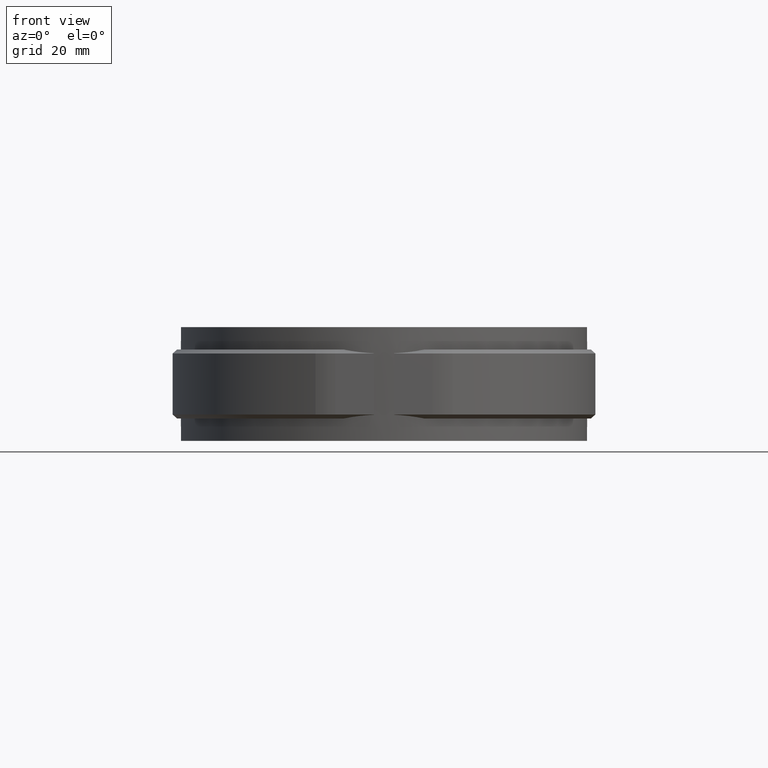
[diagram: clean part render]
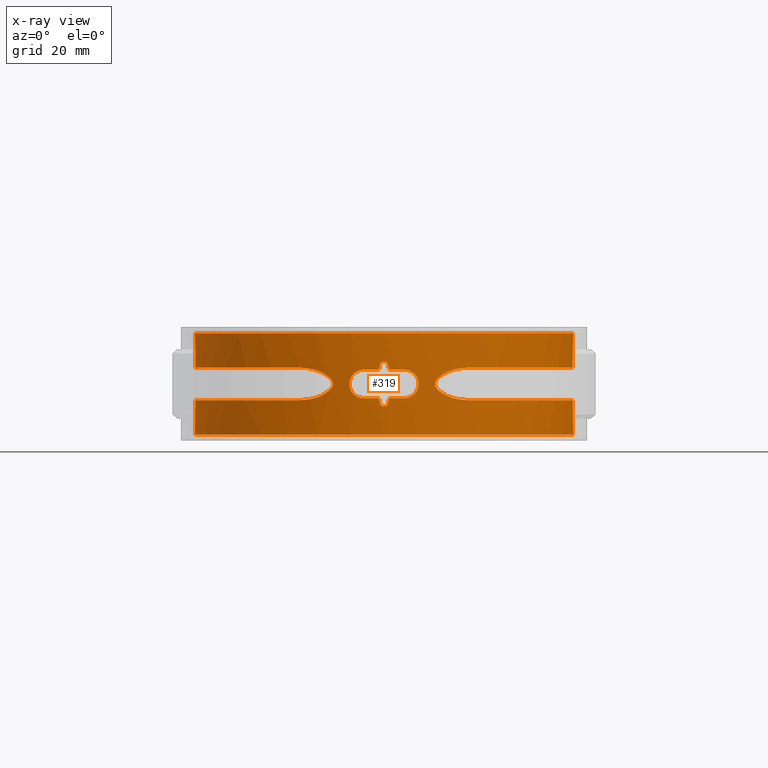
[diagram: x-ray — body ghosted, one internal face saturated and labeled with its STEP entity id]
A machine part, front view, then the same camera in x-ray: the body is ghosted and one INTERNAL B-rep face — a face not visible from any outside direction — is saturated and labeled: STEP entity #319.
In plain terms, the highlighted cylindrical surface (partial cylindrical patch) has radius 46.55 mm, axis along (0, 0, -1).
Its self-contained STEP definition (entity closure, byte-faithful):
#319 = ADVANCED_FACE( '', ( #518, #519 ), #520, .F. );
#518 = FACE_BOUND( '', #932, .T. );
#519 = FACE_OUTER_BOUND( '', #933, .T. );
#520 = CYLINDRICAL_SURFACE( '', #934, 46.5500000000000 );
#932 = EDGE_LOOP( '', ( #1930, #1931, #1932, #1933, #1934, #1935, #1936, #1937, #1938, #1939, #1940, #1941, #1942, #1943, #1944, #1945 ) );
#933 = EDGE_LOOP( '', ( #1946, #1947, #1948, #1949, #1950, #1951, #1952, #1953, #1954, #1955, #1956, #1957, #1958, #1959, #1960, #1961 ) );
#934 = AXIS2_PLACEMENT_3D( '', #1962, #1963, #1964 );
#1930 = ORIENTED_EDGE( '', *, *, #4031, .F. );
#1931 = ORIENTED_EDGE( '', *, *, #4032, .F. );
#1932 = ORIENTED_EDGE( '', *, *, #4033, .F. );
#1933 = ORIENTED_EDGE( '', *, *, #4034, .F. );
#1934 = ORIENTED_EDGE( '', *, *, #4035, .F. );
#1935 = ORIENTED_EDGE( '', *, *, #4036, .F. );
#1936 = ORIENTED_EDGE( '', *, *, #4037, .F. );
#1937 = ORIENTED_EDGE( '', *, *, #4038, .F. );
#1938 = ORIENTED_EDGE( '', *, *, #4039, .F. );
#1939 = ORIENTED_EDGE( '', *, *, #4040, .F. );
#1940 = ORIENTED_EDGE( '', *, *, #4041, .F. );
#1941 = ORIENTED_EDGE( '', *, *, #4042, .F. );
#1942 = ORIENTED_EDGE( '', *, *, #4043, .F. );
#1943 = ORIENTED_EDGE( '', *, *, #4044, .F. );
#1944 = ORIENTED_EDGE( '', *, *, #4028, .F. );
#1945 = ORIENTED_EDGE( '', *, *, #4024, .F. );
#1946 = ORIENTED_EDGE( '', *, *, #4045, .F. );
#1947 = ORIENTED_EDGE( '', *, *, #4046, .F. );
#1948 = ORIENTED_EDGE( '', *, *, #4047, .T. );
#1949 = ORIENTED_EDGE( '', *, *, #4048, .T. );
#1950 = ORIENTED_EDGE( '', *, *, #4049, .T. );
#1951 = ORIENTED_EDGE( '', *, *, #4050, .T. );
#1952 = ORIENTED_EDGE( '', *, *, #4051, .T. );
#1953 = ORIENTED_EDGE( '', *, *, #4052, .T. );
#1954 = ORIENTED_EDGE( '', *, *, #4053, .T. );
#1955 = ORIENTED_EDGE( '', *, *, #4054, .T. );
#1956 = ORIENTED_EDGE( '', *, *, #4055, .F. );
#1957 = ORIENTED_EDGE( '', *, *, #4056, .F. );
#1958 = ORIENTED_EDGE( '', *, *, #4057, .F. );
#1959 = ORIENTED_EDGE( '', *, *, #4058, .F. );
#1960 = ORIENTED_EDGE( '', *, *, #4059, .F. );
#1961 = ORIENTED_EDGE( '', *, *, #4060, .F. );
#1962 = CARTESIAN_POINT( '', ( -3.46944695195361E-015, 0.000000000000000, -12.5000000000000 ) );
#1963 = DIRECTION( '', ( 0.000000000000000, 0.000000000000000, -1.00000000000000 ) );
#1964 = DIRECTION( '', ( -1.00000000000000, 6.16283340149655E-017, 0.000000000000000 ) );
#4024 = EDGE_CURVE( '', #4532, #4533, #4534, .T. );
#4028 = EDGE_CURVE( '', #4533, #4540, #4541, .T. );
#4031 = EDGE_CURVE( '', #4545, #4532, #4546, .T. );
#4032 = EDGE_CURVE( '', #4547, #4545, #4548, .T. );
#4033 = EDGE_CURVE( '', #4549, #4547, #4550, .T. );
#4034 = EDGE_CURVE( '', #4551, #4549, #4552, .T. );
#4035 = EDGE_CURVE( '', #4553, #4551, #4554, .T. );
#4036 = EDGE_CURVE( '', #4555, #4553, #4556, .T. );
#4037 = EDGE_CURVE( '', #4557, #4555, #4558, .T. );
#4038 = EDGE_CURVE( '', #4559, #4557, #4560, .T. );
#4039 = EDGE_CURVE( '', #4561, #4559, #4562, .T. );
#4040 = EDGE_CURVE( '', #4563, #4561, #4564, .T. );
#4041 = EDGE_CURVE( '', #4565, #4563, #4566, .T. );
#4042 = EDGE_CURVE( '', #4567, #4565, #4568, .T. );
#4043 = EDGE_CURVE( '', #4569, #4567, #4570, .T. );
#4044 = EDGE_CURVE( '', #4540, #4569, #4571, .T. );
#4045 = EDGE_CURVE( '', #4572, #4573, #4574, .T. );
#4046 = EDGE_CURVE( '', #4575, #4572, #4576, .T. );
#4047 = EDGE_CURVE( '', #4575, #4577, #4578, .T. );
#4048 = EDGE_CURVE( '', #4577, #4579, #4580, .T. );
#4049 = EDGE_CURVE( '', #4579, #4581, #4582, .T. );
#4050 = EDGE_CURVE( '', #4581, #4583, #4584, .T. );
#4051 = EDGE_CURVE( '', #4583, #4585, #4586, .T. );
#4052 = EDGE_CURVE( '', #4585, #4587, #4588, .T. );
#4053 = EDGE_CURVE( '', #4587, #4589, #4590, .T. );
#4054 = EDGE_CURVE( '', #4589, #4591, #4592, .T. );
#4055 = EDGE_CURVE( '', #4593, #4591, #4594, .T. );
#4056 = EDGE_CURVE( '', #4595, #4593, #4596, .T. );
#4057 = EDGE_CURVE( '', #4597, #4595, #4598, .T. );
#4058 = EDGE_CURVE( '', #4599, #4597, #4600, .T. );
#4059 = EDGE_CURVE( '', #4601, #4599, #4602, .T. );
#4060 = EDGE_CURVE( '', #4573, #4601, #4603, .T. );
#4532 = VERTEX_POINT( '', #5372 );
#4533 = VERTEX_POINT( '', #5373 );
#4534 = ELLIPSE( '', #5374, 212.061219288384, 46.5500000000000 );
#4540 = VERTEX_POINT( '', #5382 );
#4541 = B_SPLINE_CURVE_WITH_KNOTS( '', 3, ( #5383, #5384, #5385, #5386, #5387, #5388 ), .UNSPECIFIED., .F., .F., ( 4, 2, 4 ), ( 0.000000000000000, 0.000335867643567258, 0.000671735287134516 ), .UNSPECIFIED. );
#4545 = VERTEX_POINT( '', #5398 );
#4546 = B_SPLINE_CURVE_WITH_KNOTS( '', 3, ( #5399, #5400, #5401, #5402, #5403, #5404, #5405, #5406, #5407, #5408 ), .UNSPECIFIED., .F., .F., ( 4, 2, 2, 2, 4 ), ( 9.26342742239755E-019, 0.000671567789988738, 0.00134313557997747, 0.00201470336996621, 0.00268627115995495 ), .UNSPECIFIED. );
#4547 = VERTEX_POINT( '', #5409 );
#4548 = ELLIPSE( '', #5410, 212.061327465736, 46.5500000000000 );
#4549 = VERTEX_POINT( '', #5411 );
#4550 = B_SPLINE_CURVE_WITH_KNOTS( '', 3, ( #5412, #5413, #5414, #5415, #5416, #5417 ), .UNSPECIFIED., .F., .F., ( 4, 2, 4 ), ( 5.70418124105125E-018, 0.000335865768424954, 0.000671731536849902 ), .UNSPECIFIED. );
#4551 = VERTEX_POINT( '', #5418 );
#4552 = CIRCLE( '', #5419, 46.5500000000000 );
#4553 = VERTEX_POINT( '', #5420 );
#4554 = B_SPLINE_CURVE_WITH_KNOTS( '', 3, ( #5421, #5422, #5423, #5424, #5425, #5426, #5427, #5428, #5429, #5430, #5431, #5432, #5433, #5434, #5435, #5436, #5437, #5438, #5439, #5440, #5441, #5442, #5443, #5444, #5445, #5446, #5447, #5448, #5449, #5450, #5451, #5452, #5453, #5454 ), .UNSPECIFIED., .F., .F., ( 4, 2, 2, 2, 2, 2, 2, 2, 2, 2, 2, 2, 2, 2, 2, 2, 4 ), ( 8.67361737988403E-019, 0.000687134771177364, 0.00137426954235473, 0.00206140431353209, 0.00274853908470945, 0.00343567385588682, 0.00412280862706418, 0.00480994339824155, 0.00549707816941891, 0.00618421294059628, 0.00687134771177364, 0.00755848248295101, 0.00824561725412837, 0.00893275202530574, 0.00961988679648310, 0.0103070215676605, 0.0109941563388378 ), .UNSPECIFIED. );
#4555 = VERTEX_POINT( '', #5455 );
#4556 = CIRCLE( '', #5456, 46.5500000000000 );
#4557 = VERTEX_POINT( '', #5457 );
#4558 = B_SPLINE_CURVE_WITH_KNOTS( '', 3, ( #5458, #5459, #5460, #5461, #5462, #5463 ), .UNSPECIFIED., .F., .F., ( 4, 2, 4 ), ( 0.000000000000000, 0.000335867643567312, 0.000671735287134625 ), .UNSPECIFIED. );
#4559 = VERTEX_POINT( '', #5464 );
#4560 = ELLIPSE( '', #5465, 212.061219288399, 46.5500000000000 );
#4561 = VERTEX_POINT( '', #5466 );
#4562 = B_SPLINE_CURVE_WITH_KNOTS( '', 3, ( #5467, #5468, #5469, #5470, #5471, #5472, #5473, #5474, #5475, #5476 ), .UNSPECIFIED., .F., .F., ( 4, 2, 2, 2, 4 ), ( 1.08420217248550E-019, 0.000671567789988737, 0.00134313557997747, 0.00201470336996621, 0.00268627115995495 ), .UNSPECIFIED. );
#4563 = VERTEX_POINT( '', #5477 );
#4564 = ELLIPSE( '', #5478, 212.061327465781, 46.5500000000000 );
#4565 = VERTEX_POINT( '', #5479 );
#4566 = B_SPLINE_CURVE_WITH_KNOTS( '', 3, ( #5480, #5481, #5482, #5483, #5484, #5485 ), .UNSPECIFIED., .F., .F., ( 4, 2, 4 ), ( 0.000000000000000, 0.000335865768424969, 0.000671731536849938 ), .UNSPECIFIED. );
#4567 = VERTEX_POINT( '', #5486 );
#4568 = CIRCLE( '', #5487, 46.5500000000000 );
#4569 = VERTEX_POINT( '', #5488 );
#4570 = B_SPLINE_CURVE_WITH_KNOTS( '', 3, ( #5489, #5490, #5491, #5492, #5493, #5494, #5495, #5496, #5497, #5498, #5499, #5500, #5501, #5502, #5503, #5504, #5505, #5506, #5507, #5508, #5509, #5510, #5511, #5512, #5513, #5514, #5515, #5516, #5517, #5518, #5519, #5520, #5521, #5522 ), .UNSPECIFIED., .F., .F., ( 4, 2, 2, 2, 2, 2, 2, 2, 2, 2, 2, 2, 2, 2, 2, 2, 4 ), ( 8.67361737988404E-019, 0.000687134771177361, 0.00137426954235472, 0.00206140431353208, 0.00274853908470944, 0.00343567385588680, 0.00412280862706416, 0.00480994339824152, 0.00549707816941889, 0.00618421294059625, 0.00687134771177361, 0.00755848248295097, 0.00824561725412833, 0.00893275202530569, 0.00961988679648305, 0.0103070215676604, 0.0109941563388378 ), .UNSPECIFIED. );
#4571 = CIRCLE( '', #5523, 46.5500000000000 );
#4572 = VERTEX_POINT( '', #5524 );
#4573 = VERTEX_POINT( '', #5525 );
#4574 = B_SPLINE_CURVE_WITH_KNOTS( '', 3, ( #5526, #5527, #5528, #5529, #5530, #5531, #5532, #5533, #5534, #5535, #5536, #5537, #5538, #5539, #5540, #5541, #5542, #5543, #5544, #5545, #5546, #5547, #5548, #5549, #5550, #5551, #5552, #5553, #5554, #5555, #5556, #5557, #5558, #5559, #5560, #5561, #5562, #5563, #5564, #5565, #5566, #5567, #5568, #5569, #5570, #5571, #5572, #5573, #5574, #5575, #5576, #5577, #5578, #5579, #5580, #5581 ), .UNSPECIFIED., .F., .F., ( 4, 2, 2, 2, 2, 2, 2, 2, 2, 2, 2, 2, 2, 2, 2, 2, 2, 2, 2, 2, 2, 2, 2, 2, 2, 2, 2, 4 ), ( 0.000000000000000, 0.00739241022400143, 0.00924051278000178, 0.0110886153360021, 0.0147848204480028, 0.0221772306720043, 0.0258734357840050, 0.0295696408960057, 0.0369620511200071, 0.0406582562320078, 0.0425063587880081, 0.0443544613440085, 0.0517468715680099, 0.0554430766800105, 0.0591392817920112, 0.0665316920160126, 0.0702278971280133, 0.0720759996840136, 0.0739241022400140, 0.0813165124640153, 0.0887089226880167, 0.0924051278000174, 0.0961013329120181, 0.103493743136019, 0.105341845692020, 0.107189948248020, 0.110886153360021, 0.118278563584022 ), .UNSPECIFIED. );
#4575 = VERTEX_POINT( '', #5582 );
#4576 = LINE( '', #5583, #5584 );
#4577 = VERTEX_POINT( '', #5585 );
#4578 = CIRCLE( '', #5586, 46.5500000000000 );
#4579 = VERTEX_POINT( '', #5587 );
#4580 = LINE( '', #5588, #5589 );
#4581 = VERTEX_POINT( '', #5590 );
#4582 = B_SPLINE_CURVE_WITH_KNOTS( '', 3, ( #5591, #5592, #5593, #5594, #5595, #5596, #5597, #5598, #5599, #5600, #5601, #5602, #5603, #5604, #5605, #5606, #5607, #5608, #5609, #5610, #5611, #5612, #5613, #5614, #5615, #5616, #5617, #5618, #5619, #5620, #5621, #5622, #5623, #5624, #5625, #5626, #5627, #5628, #5629, #5630, #5631, #5632, #5633, #5634, #5635, #5636, #5637, #5638, #5639, #5640, #5641, #5642, #5643, #5644 ), .UNSPECIFIED., .F., .F., ( 4, 2, 2, 2, 2, 2, 2, 2, 2, 2, 2, 2, 2, 2, 2, 2, 2, 2, 2, 2, 2, 2, 2, 2, 2, 2, 4 ), ( 0.00461311502875989, 0.00831044911400741, 0.0120077831992549, 0.0194024513697500, 0.0230997854549975, 0.0249484524976212, 0.0267971195402450, 0.0341917877107400, 0.0415864558812350, 0.0489811240517300, 0.0563757922222249, 0.0582244592648487, 0.0600731263074724, 0.0637704603927199, 0.0711651285632149, 0.0748624626484624, 0.0785597967337099, 0.0859544649042049, 0.0878031319468287, 0.0896517989894524, 0.0933491330746999, 0.100743801245195, 0.104441135330442, 0.108138469415690, 0.115533137586185, 0.119230471671432, 0.122927805756680 ), .UNSPECIFIED. );
#4583 = VERTEX_POINT( '', #5645 );
#4584 = B_SPLINE_CURVE_WITH_KNOTS( '', 3, ( #5646, #5647, #5648, #5649, #5650, #5651, #5652, #5653, #5654, #5655 ), .UNSPECIFIED., .F., .F., ( 4, 2, 2, 2, 4 ), ( 0.000000000000000, 0.00149632237868849, 0.00299264475737698, 0.00448896713606547, 0.00598528951475396 ), .UNSPECIFIED. );
#4585 = VERTEX_POINT( '', #5656 );
#4586 = B_SPLINE_CURVE_WITH_KNOTS( '', 3, ( #5657, #5658, #5659, #5660, #5661, #5662, #5663, #5664, #5665, #5666, #5667, #5668, #5669, #5670, #5671, #5672, #5673, #5674, #5675, #5676, #5677, #5678, #5679, #5680, #5681, #5682, #5683, #5684, #5685, #5686 ), .UNSPECIFIED., .F., .F., ( 4, 2, 2, 2, 2, 2, 2, 2, 2, 2, 2, 2, 2, 2, 4 ), ( 0.000000000000000, 0.00112011935832342, 0.00224023871664684, 0.00280029839580855, 0.00336035807497026, 0.00392041775413197, 0.00420044759371283, 0.00448047743329368, 0.00476050727287454, 0.00504053711245539, 0.00560059679161710, 0.00616065647077881, 0.00672071614994052, 0.00784083550826393, 0.00896095486658735 ), .UNSPECIFIED. );
#4587 = VERTEX_POINT( '', #5687 );
#4588 = B_SPLINE_CURVE_WITH_KNOTS( '', 3, ( #5688, #5689, #5690, #5691, #5692, #5693, #5694, #5695, #5696, #5697 ), .UNSPECIFIED., .F., .F., ( 4, 2, 2, 2, 4 ), ( 0.000000000000000, 0.00149513425753580, 0.00299026851507159, 0.00448540277260739, 0.00598053703014319 ), .UNSPECIFIED. );
#4589 = VERTEX_POINT( '', #5698 );
#4590 = B_SPLINE_CURVE_WITH_KNOTS( '', 3, ( #5699, #5700, #5701, #5702, #5703, #5704, #5705, #5706, #5707, #5708, #5709, #5710, #5711, #5712, #5713, #5714, #5715, #5716, #5717, #5718, #5719, #5720, #5721, #5722, #5723, #5724, #5725, #5726, #5727, #5728, #5729, #5730, #5731, #5732, #5733, #5734, #5735, #5736, #5737, #5738, #5739, #5740, #5741, #5742, #5743, #5744, #5745, #5746, #5747, #5748, #5749, #5750, #5751, #5752, #5753, #5754 ), .UNSPECIFIED., .F., .F., ( 4, 2, 2, 2, 2, 2, 2, 2, 2, 2, 2, 2, 2, 2, 2, 2, 2, 2, 2, 2, 2, 2, 2, 2, 2, 2, 2, 4 ), ( 0.000000000000000, 0.00739525285955345, 0.00924406607444182, 0.0110928792893302, 0.0147905057191069, 0.0221857585786603, 0.0258833850084370, 0.0295810114382137, 0.0369762642977672, 0.0406738907275439, 0.0425227039424322, 0.0443715171573206, 0.0517667700168740, 0.0554643964466508, 0.0591620228764275, 0.0665572757359809, 0.0702549021657576, 0.0721037153806460, 0.0739525285955343, 0.0813477814550877, 0.0887430343146411, 0.0924406607444178, 0.0961382871741946, 0.103533540033748, 0.105382353248636, 0.107231166463525, 0.110928792893301, 0.118324045752855 ), .UNSPECIFIED. );
#4591 = VERTEX_POINT( '', #5755 );
#4592 = LINE( '', #5756, #5757 );
#4593 = VERTEX_POINT( '', #5758 );
#4594 = CIRCLE( '', #5759, 46.5500000000000 );
#4595 = VERTEX_POINT( '', #5760 );
#4596 = LINE( '', #5761, #5762 );
#4597 = VERTEX_POINT( '', #5763 );
#4598 = B_SPLINE_CURVE_WITH_KNOTS( '', 3, ( #5764, #5765, #5766, #5767, #5768, #5769, #5770, #5771, #5772, #5773, #5774, #5775, #5776, #5777, #5778, #5779, #5780, #5781, #5782, #5783, #5784, #5785, #5786, #5787, #5788, #5789, #5790, #5791, #5792, #5793, #5794, #5795, #5796, #5797, #5798, #5799, #5800, #5801, #5802, #5803, #5804, #5805, #5806, #5807, #5808, #5809, #5810, #5811, #5812, #5813, #5814, #5815, #5816, #5817, #5818, #5819 ), .UNSPECIFIED., .F., .F., ( 4, 2, 2, 2, 2, 2, 2, 2, 2, 2, 2, 2, 2, 2, 2, 2, 2, 2, 2, 2, 2, 2, 2, 2, 2, 2, 2, 4 ), ( 0.000000000000000, 0.00739525285955343, 0.00924406607444180, 0.0110928792893302, 0.0147905057191069, 0.0221857585786603, 0.0258833850084371, 0.0295810114382138, 0.0369762642977672, 0.0406738907275439, 0.0425227039424323, 0.0443715171573206, 0.0517667700168741, 0.0554643964466508, 0.0591620228764275, 0.0665572757359810, 0.0702549021657577, 0.0721037153806461, 0.0739525285955344, 0.0813477814550878, 0.0887430343146412, 0.0924406607444179, 0.0961382871741946, 0.103533540033748, 0.105382353248636, 0.107231166463525, 0.110928792893301, 0.118324045752855 ), .UNSPECIFIED. );
#4599 = VERTEX_POINT( '', #5820 );
#4600 = B_SPLINE_CURVE_WITH_KNOTS( '', 3, ( #5821, #5822, #5823, #5824, #5825, #5826, #5827, #5828, #5829, #5830 ), .UNSPECIFIED., .F., .F., ( 4, 2, 2, 2, 4 ), ( 0.000000000000000, 0.00149513425753580, 0.00299026851507159, 0.00448540277260739, 0.00598053703014319 ), .UNSPECIFIED. );
#4601 = VERTEX_POINT( '', #5831 );
#4602 = B_SPLINE_CURVE_WITH_KNOTS( '', 3, ( #5832, #5833, #5834, #5835, #5836, #5837, #5838, #5839, #5840, #5841, #5842, #5843, #5844, #5845, #5846, #5847, #5848, #5849, #5850, #5851, #5852, #5853, #5854, #5855, #5856, #5857, #5858, #5859, #5860, #5861 ), .UNSPECIFIED., .F., .F., ( 4, 2, 2, 2, 2, 2, 2, 2, 2, 2, 2, 2, 2, 2, 4 ), ( 0.000000000000000, 0.00112011935832342, 0.00224023871664684, 0.00280029839580855, 0.00336035807497026, 0.00392041775413197, 0.00420044759371283, 0.00448047743329368, 0.00476050727287454, 0.00504053711245539, 0.00560059679161710, 0.00616065647077881, 0.00672071614994052, 0.00784083550826393, 0.00896095486658735 ), .UNSPECIFIED. );
#4603 = B_SPLINE_CURVE_WITH_KNOTS( '', 3, ( #5862, #5863, #5864, #5865, #5866, #5867, #5868, #5869, #5870, #5871 ), .UNSPECIFIED., .F., .F., ( 4, 2, 2, 2, 4 ), ( 0.000000000000000, 0.00149632237868849, 0.00299264475737698, 0.00448896713606547, 0.00598528951475396 ), .UNSPECIFIED. );
#5372 = CARTESIAN_POINT( '', ( -0.975609757981835, -46.5397753067216, -4.71951218674743 ) );
#5373 = CARTESIAN_POINT( '', ( -1.16219500000001, -46.5354897124976, -3.89024399999999 ) );
#5374 = AXIS2_PLACEMENT_3D( '', #8255, #8256, #8257 );
#5382 = CARTESIAN_POINT( '', ( -1.64999999999996, -46.5207480593337, -3.49999999999999 ) );
#5383 = CARTESIAN_POINT( '', ( -1.16219500000001, -46.5354897124976, -3.89024399999999 ) );
#5384 = CARTESIAN_POINT( '', ( -1.18712420397179, -46.5348671210865, -3.77944753568268 ) );
#5385 = CARTESIAN_POINT( '', ( -1.24903650881785, -46.5333243537973, -3.68044081312041 ) );
#5386 = CARTESIAN_POINT( '', ( -1.42636241158842, -46.5282264640172, -3.53861514028637 ) );
#5387 = CARTESIAN_POINT( '', ( -1.53650490240857, -46.5247735085975, -3.49999999951289 ) );
#5388 = CARTESIAN_POINT( '', ( -1.64999999999996, -46.5207480593337, -3.50000000000000 ) );
#5398 = CARTESIAN_POINT( '', ( 0.975609999999998, -46.5397753016481, -4.71951200000000 ) );
#5399 = CARTESIAN_POINT( '', ( 0.975609999999998, -46.5397753016481, -4.71951200000000 ) );
#5400 = CARTESIAN_POINT( '', ( 0.925763811660467, -46.5408202237495, -4.94105072272846 ) );
#5401 = CARTESIAN_POINT( '', ( 0.802006513264279, -46.5434284211128, -5.13901837189036 ) );
#5402 = CARTESIAN_POINT( '', ( 0.447391365684778, -46.5481877692836, -5.42271325637587 ) );
#5403 = CARTESIAN_POINT( '', ( 0.227079142415347, -46.5500000006644, -5.50000005706915 ) );
#5404 = CARTESIAN_POINT( '', ( -0.227079414810581, -46.5499999993356, -5.49999994979800 ) );
#5405 = CARTESIAN_POINT( '', ( -0.447400186077757, -46.5481876660238, -5.42270759232652 ) );
#5406 = CARTESIAN_POINT( '', ( -0.802005630293599, -46.5434284178428, -5.13901736590035 ) );
#5407 = CARTESIAN_POINT( '', ( -0.925763527024686, -46.5408202294570, -4.94105090087471 ) );
#5408 = CARTESIAN_POINT( '', ( -0.975609757981835, -46.5397753067216, -4.71951218674743 ) );
#5409 = CARTESIAN_POINT( '', ( 1.16219512100914, -46.5354897094755, -3.89024390662629 ) );
#5410 = AXIS2_PLACEMENT_3D( '', #8264, #8265, #8266 );
#5411 = CARTESIAN_POINT( '', ( 1.65000000000002, -46.5207480593337, -3.49999999999999 ) );
#5412 = CARTESIAN_POINT( '', ( 1.65000000000002, -46.5207480593337, -3.50000000000002 ) );
#5413 = CARTESIAN_POINT( '', ( 1.53650492986797, -46.5247735076235, -3.50000000000002 ) );
#5414 = CARTESIAN_POINT( '', ( 1.42636231025923, -46.5282264652819, -3.53861554993225 ) );
#5415 = CARTESIAN_POINT( '', ( 1.24903833890374, -46.5333243028331, -3.68043909286674 ) );
#5416 = CARTESIAN_POINT( '', ( 1.18712431856231, -46.5348671181598, -3.77944746861569 ) );
#5417 = CARTESIAN_POINT( '', ( 1.16219512100914, -46.5354897094755, -3.89024390662629 ) );
#5418 = CARTESIAN_POINT( '', ( 5.00000000000004, -46.2806925185870, -3.49999999999999 ) );
#5419 = AXIS2_PLACEMENT_3D( '', #8267, #8268, #8269 );
#5420 = CARTESIAN_POINT( '', ( 5.00000000000004, -46.2806925185870, 3.50000000000000 ) );
#5421 = CARTESIAN_POINT( '', ( 5.00000000000005, -46.2806925185870, 3.50000000000000 ) );
#5422 = CARTESIAN_POINT( '', ( 5.23101424725128, -46.2557345680163, 3.50000000000000 ) );
#5423 = CARTESIAN_POINT( '', ( 5.45798688627984, -46.2294648070248, 3.47735417320556 ) );
#5424 = CARTESIAN_POINT( '', ( 5.90423554468161, -46.1745930120415, 3.38882016543352 ) );
#5425 = CARTESIAN_POINT( '', ( 6.12575625310973, -46.1456732050923, 3.32189913692397 ) );
#5426 = CARTESIAN_POINT( '', ( 6.54860903964377, -46.0875662719305, 3.14708612205728 ) );
#5427 = CARTESIAN_POINT( '', ( 6.74913194916253, -46.0585339927889, 3.04014833053229 ) );
#5428 = CARTESIAN_POINT( '', ( 7.12869562067263, -46.0013155722735, 2.78758307530890 ) );
#5429 = CARTESIAN_POINT( '', ( 7.30868713323898, -45.9729526051980, 2.64044435126905 ) );
#5430 = CARTESIAN_POINT( '', ( 7.63173027795680, -45.9204308757645, 2.31861562045489 ) );
#5431 = CARTESIAN_POINT( '', ( 7.77679320521374, -45.8959793147898, 2.14295842760768 ) );
#5432 = CARTESIAN_POINT( '', ( 8.03324278500658, -45.8517877533407, 1.76133175017698 ) );
#5433 = CARTESIAN_POINT( '', ( 8.14289242043931, -45.8323441894986, 1.55705653946266 ) );
#5434 = CARTESIAN_POINT( '', ( 8.31863855610540, -45.8007720835402, 1.13526911675996 ) );
#5435 = CARTESIAN_POINT( '', ( 8.38623987158776, -45.7883787014959, 0.914916126865259 ) );
#5436 = CARTESIAN_POINT( '', ( 8.47729974651430, -45.7716072724474, 0.460519771584722 ) );
#5437 = CARTESIAN_POINT( '', ( 8.49980279502249, -45.7674103755657, 0.232266715548748 ) );
#5438 = CARTESIAN_POINT( '', ( 8.50019464909964, -45.7673375997242, -0.226284885958610 ) );
#5439 = CARTESIAN_POINT( '', ( 8.47736465282512, -45.7715947026079, -0.459162923809957 ) );
#5440 = CARTESIAN_POINT( '', ( 8.38737811139794, -45.7881696674284, -0.910255485971624 ) );
#5441 = CARTESIAN_POINT( '', ( 8.32081330275416, -45.8003775084187, -1.12917817948343 ) );
#5442 = CARTESIAN_POINT( '', ( 8.14459446912271, -45.8320422288435, -1.55382430716390 ) );
#5443 = CARTESIAN_POINT( '', ( 8.03450063987222, -45.8515640224239, -1.75894670944727 ) );
#5444 = CARTESIAN_POINT( '', ( 7.78038144641327, -45.8953678314364, -2.13812223048664 ) );
#5445 = CARTESIAN_POINT( '', ( 7.63547307573153, -45.9198155370584, -2.31464134562974 ) );
#5446 = CARTESIAN_POINT( '', ( 7.30865900001749, -45.9729639208650, -2.64071515189402 ) );
#5447 = CARTESIAN_POINT( '', ( 7.13210339171439, -46.0007847819863, -2.78493446076323 ) );
#5448 = CARTESIAN_POINT( '', ( 6.75376402296731, -46.0578524344199, -3.03743914761301 ) );
#5449 = CARTESIAN_POINT( '', ( 6.54961913161978, -46.0874221809350, -3.14658187784906 ) );
#5450 = CARTESIAN_POINT( '', ( 6.12700537486969, -46.1455068147413, -3.32146892987199 ) );
#5451 = CARTESIAN_POINT( '', ( 5.90948262079245, -46.1739247487791, -3.38746115223729 ) );
#5452 = CARTESIAN_POINT( '', ( 5.46202983718599, -46.2289902724367, -3.47686354707661 ) );
#5453 = CARTESIAN_POINT( '', ( 5.23101208102020, -46.2557348020482, -3.50000000000002 ) );
#5454 = CARTESIAN_POINT( '', ( 5.00000000000005, -46.2806925185870, -3.50000000000002 ) );
#5455 = CARTESIAN_POINT( '', ( 1.65000000000005, -46.5207480593337, 3.50000000000000 ) );
#5456 = AXIS2_PLACEMENT_3D( '', #8270, #8271, #8272 );
#5457 = CARTESIAN_POINT( '', ( 1.16219499999999, -46.5354897124976, 3.89024400000000 ) );
#5458 = CARTESIAN_POINT( '', ( 1.16219499999999, -46.5354897124976, 3.89024400000000 ) );
#5459 = CARTESIAN_POINT( '', ( 1.18712420397179, -46.5348671210865, 3.77944753568268 ) );
#5460 = CARTESIAN_POINT( '', ( 1.24903650881786, -46.5333243537973, 3.68044081312039 ) );
#5461 = CARTESIAN_POINT( '', ( 1.42636241158847, -46.5282264640172, 3.53861514028634 ) );
#5462 = CARTESIAN_POINT( '', ( 1.53650490240864, -46.5247735085975, 3.49999999951287 ) );
#5463 = CARTESIAN_POINT( '', ( 1.65000000000005, -46.5207480593337, 3.49999999999999 ) );
#5464 = CARTESIAN_POINT( '', ( 0.975609757981830, -46.5397753067216, 4.71951218674745 ) );
#5465 = AXIS2_PLACEMENT_3D( '', #8273, #8274, #8275 );
#5466 = CARTESIAN_POINT( '', ( -0.975610000000002, -46.5397753016481, 4.71951200000000 ) );
#5467 = CARTESIAN_POINT( '', ( -0.975610000000002, -46.5397753016481, 4.71951200000000 ) );
#5468 = CARTESIAN_POINT( '', ( -0.925763811660473, -46.5408202237495, 4.94105072272847 ) );
#5469 = CARTESIAN_POINT( '', ( -0.802006513264287, -46.5434284211128, 5.13901837189037 ) );
#5470 = CARTESIAN_POINT( '', ( -0.447391365684787, -46.5481877692836, 5.42271325637588 ) );
#5471 = CARTESIAN_POINT( '', ( -0.227079142415356, -46.5500000006644, 5.50000005706916 ) );
#5472 = CARTESIAN_POINT( '', ( 0.227079414810572, -46.5499999993356, 5.49999994979801 ) );
#5473 = CARTESIAN_POINT( '', ( 0.447400186077750, -46.5481876660238, 5.42270759232653 ) );
#5474 = CARTESIAN_POINT( '', ( 0.802005630293593, -46.5434284178428, 5.13901736590036 ) );
#5475 = CARTESIAN_POINT( '', ( 0.925763527024679, -46.5408202294570, 4.94105090087473 ) );
#5476 = CARTESIAN_POINT( '', ( 0.975609757981829, -46.5397753067216, 4.71951218674745 ) );
#5477 = CARTESIAN_POINT( '', ( -1.16219512100910, -46.5354897094755, 3.89024390662629 ) );
#5478 = AXIS2_PLACEMENT_3D( '', #8276, #8277, #8278 );
#5479 = CARTESIAN_POINT( '', ( -1.65000000000002, -46.5207480593337, 3.50000000000000 ) );
#5480 = CARTESIAN_POINT( '', ( -1.65000000000002, -46.5207480593337, 3.50000000000000 ) );
#5481 = CARTESIAN_POINT( '', ( -1.53650492986795, -46.5247735076235, 3.50000000000000 ) );
#5482 = CARTESIAN_POINT( '', ( -1.42636231025921, -46.5282264652819, 3.53861554993223 ) );
#5483 = CARTESIAN_POINT( '', ( -1.24903833890371, -46.5333243028331, 3.68043909286673 ) );
#5484 = CARTESIAN_POINT( '', ( -1.18712431856228, -46.5348671181598, 3.77944746861568 ) );
#5485 = CARTESIAN_POINT( '', ( -1.16219512100910, -46.5354897094755, 3.89024390662629 ) );
#5486 = CARTESIAN_POINT( '', ( -4.99999999999995, -46.2806925185870, 3.50000000000000 ) );
#5487 = AXIS2_PLACEMENT_3D( '', #8279, #8280, #8281 );
#5488 = CARTESIAN_POINT( '', ( -4.99999999999995, -46.2806925185870, -3.49999999999999 ) );
#5489 = CARTESIAN_POINT( '', ( -4.99999999999995, -46.2806925185870, -3.49999999999999 ) );
#5490 = CARTESIAN_POINT( '', ( -5.23101424725119, -46.2557345680164, -3.49999999999999 ) );
#5491 = CARTESIAN_POINT( '', ( -5.45798688627975, -46.2294648070249, -3.47735417320555 ) );
#5492 = CARTESIAN_POINT( '', ( -5.90423554468151, -46.1745930120415, -3.38882016543350 ) );
#5493 = CARTESIAN_POINT( '', ( -6.12575625310963, -46.1456732050923, -3.32189913692395 ) );
#5494 = CARTESIAN_POINT( '', ( -6.54860903964367, -46.0875662719305, -3.14708612205726 ) );
#5495 = CARTESIAN_POINT( '', ( -6.74913194916243, -46.0585339927889, -3.04014833053228 ) );
#5496 = CARTESIAN_POINT( '', ( -7.12869562067252, -46.0013155722735, -2.78758307530889 ) );
#5497 = CARTESIAN_POINT( '', ( -7.30868713323888, -45.9729526051980, -2.64044435126904 ) );
#5498 = CARTESIAN_POINT( '', ( -7.63173027795669, -45.9204308757646, -2.31861562045488 ) );
#5499 = CARTESIAN_POINT( '', ( -7.77679320521363, -45.8959793147898, -2.14295842760768 ) );
#5500 = CARTESIAN_POINT( '', ( -8.03324278500647, -45.8517877533408, -1.76133175017698 ) );
#5501 = CARTESIAN_POINT( '', ( -8.14289242043920, -45.8323441894986, -1.55705653946265 ) );
#5502 = CARTESIAN_POINT( '', ( -8.31863855610529, -45.8007720835402, -1.13526911675996 ) );
#5503 = CARTESIAN_POINT( '', ( -8.38623987158765, -45.7883787014959, -0.914916126865256 ) );
#5504 = CARTESIAN_POINT( '', ( -8.47729974651419, -45.7716072724474, -0.460519771584723 ) );
#5505 = CARTESIAN_POINT( '', ( -8.49980279502238, -45.7674103755657, -0.232266715548750 ) );
#5506 = CARTESIAN_POINT( '', ( -8.50019464909952, -45.7673375997242, 0.226284885958605 ) );
#5507 = CARTESIAN_POINT( '', ( -8.47736465282501, -45.7715947026079, 0.459162923809953 ) );
#5508 = CARTESIAN_POINT( '', ( -8.38737811139782, -45.7881696674285, 0.910255485971617 ) );
#5509 = CARTESIAN_POINT( '', ( -8.32081330275405, -45.8003775084188, 1.12917817948342 ) );
#5510 = CARTESIAN_POINT( '', ( -8.14459446912259, -45.8320422288435, 1.55382430716389 ) );
#5511 = CARTESIAN_POINT( '', ( -8.03450063987211, -45.8515640224239, 1.75894670944726 ) );
#5512 = CARTESIAN_POINT( '', ( -7.78038144641316, -45.8953678314364, 2.13812223048662 ) );
#5513 = CARTESIAN_POINT( '', ( -7.63547307573142, -45.9198155370585, 2.31464134562972 ) );
#5514 = CARTESIAN_POINT( '', ( -7.30865900001738, -45.9729639208650, 2.64071515189400 ) );
#5515 = CARTESIAN_POINT( '', ( -7.13210339171428, -46.0007847819863, 2.78493446076321 ) );
#5516 = CARTESIAN_POINT( '', ( -6.75376402296721, -46.0578524344199, 3.03743914761299 ) );
#5517 = CARTESIAN_POINT( '', ( -6.54961913161968, -46.0874221809350, 3.14658187784904 ) );
#5518 = CARTESIAN_POINT( '', ( -6.12700537486959, -46.1455068147413, 3.32146892987196 ) );
#5519 = CARTESIAN_POINT( '', ( -5.90948262079235, -46.1739247487791, 3.38746115223727 ) );
#5520 = CARTESIAN_POINT( '', ( -5.46202983718589, -46.2289902724368, 3.47686354707659 ) );
#5521 = CARTESIAN_POINT( '', ( -5.23101208102011, -46.2557348020482, 3.49999999999999 ) );
#5522 = CARTESIAN_POINT( '', ( -4.99999999999995, -46.2806925185870, 3.49999999999999 ) );
#5523 = AXIS2_PLACEMENT_3D( '', #8282, #8283, #8284 );
#5524 = CARTESIAN_POINT( '', ( 6.57618567103939, 46.0831453138782, -3.99547789453365 ) );
#5525 = CARTESIAN_POINT( '', ( 20.9286488140006, -41.5799738154699, -3.99749411284496 ) );
#5526 = CARTESIAN_POINT( '', ( 6.57618567103939, 46.0831453138782, -3.99547789453365 ) );
#5527 = CARTESIAN_POINT( '', ( 9.03007763106052, 45.7329684968259, -3.99397550587318 ) );
#5528 = CARTESIAN_POINT( '', ( 11.4349335122546, 45.1910634176170, -3.99297811472633 ) );
#5529 = CARTESIAN_POINT( '', ( 14.3805562555051, 44.2773369271465, -3.99377441429058 ) );
#5530 = CARTESIAN_POINT( '', ( 14.9666404066915, 44.0827038345628, -3.99401518021754 ) );
#5531 = CARTESIAN_POINT( '', ( 16.1326765619879, 43.6694612901885, -3.99461234227234 ) );
#5532 = CARTESIAN_POINT( '', ( 16.7132801183845, 43.4505485279413, -3.99496925358459 ) );
#5533 = CARTESIAN_POINT( '', ( 18.4335184960048, 42.7625244184172, -3.99608325858104 ) );
#5534 = CARTESIAN_POINT( '', ( 19.5553595893905, 42.2609760911114, -3.99689817422308 ) );
#5535 = CARTESIAN_POINT( '', ( 22.8478307663134, 40.6309965992631, -3.99805808182011 ) );
#5536 = CARTESIAN_POINT( '', ( 24.9458520686048, 39.3779915789106, -3.99627556149785 ) );
#5537 = CARTESIAN_POINT( '', ( 27.9466987309228, 37.2476756871808, -3.99467976945150 ) );
#5538 = CARTESIAN_POINT( '', ( 28.9226241460492, 36.4954815554455, -3.99431753541407 ) );
#5539 = CARTESIAN_POINT( '', ( 30.8235126338302, 34.9048625605316, -3.99422994355109 ) );
#5540 = CARTESIAN_POINT( '', ( 31.7358122132083, 34.0770500746909, -3.99450535032411 ) );
#5541 = CARTESIAN_POINT( '', ( 34.3617511578624, 31.4990639839533, -3.99594849957519 ) );
#5542 = CARTESIAN_POINT( '', ( 35.9650968863893, 29.6549093891415, -3.99787450118167 ) );
#5543 = CARTESIAN_POINT( '', ( 38.1502477906098, 26.7013282393679, -3.99718837088351 ) );
#5544 = CARTESIAN_POINT( '', ( 38.8418193240743, 25.6854336089158, -3.99648971199081 ) );
#5545 = CARTESIAN_POINT( '', ( 39.8225112222334, 24.1133071555024, -3.99547269593865 ) );
#5546 = CARTESIAN_POINT( '', ( 40.1404795432186, 23.5802048498777, -3.99513541023542 ) );
#5547 = CARTESIAN_POINT( '', ( 40.7521181978722, 22.5066439325902, -3.99455364906564 ) );
#5548 = CARTESIAN_POINT( '', ( 41.0463395848322, 21.9653871597278, -3.99430857407783 ) );
#5549 = CARTESIAN_POINT( '', ( 42.4603507377291, 19.2370667584880, -3.99343648326422 ) );
#5550 = CARTESIAN_POINT( '', ( 43.4099147327429, 16.9843032867978, -3.99416618747377 ) );
#5551 = CARTESIAN_POINT( '', ( 44.5657646454424, 13.5015299272903, -3.99614209631284 ) );
#5552 = CARTESIAN_POINT( '', ( 44.9060908560450, 12.3232539251376, -3.99688912487060 ) );
#5553 = CARTESIAN_POINT( '', ( 45.4949390093118, 9.93126919450842, -3.99763975321301 ) );
#5554 = CARTESIAN_POINT( '', ( 45.7439109135267, 8.71296139361783, -3.99744433822756 ) );
#5555 = CARTESIAN_POINT( '', ( 46.3392893475279, 5.06429564811054, -3.99581618573710 ) );
#5556 = CARTESIAN_POINT( '', ( 46.5401247727458, 2.62577617584300, -3.99405667683791 ) );
#5557 = CARTESIAN_POINT( '', ( 46.5544078574001, -1.04089511667610, -3.99375645471959 ) );
#5558 = CARTESIAN_POINT( '', ( 46.5111138711699, -2.26460791254344, -3.99398674170200 ) );
#5559 = CARTESIAN_POINT( '', ( 46.3729430905891, -4.10244619106728, -3.99470918688381 ) );
#5560 = CARTESIAN_POINT( '', ( 46.3146669435425, -4.71543757263763, -3.99500908599357 ) );
#5561 = CARTESIAN_POINT( '', ( 46.1733052170228, -5.94218906871573, -3.99566089352777 ) );
#5562 = CARTESIAN_POINT( '', ( 46.0899894530313, -6.55723223796912, -3.99601348828129 ) );
#5563 = CARTESIAN_POINT( '', ( 45.6141861750645, -9.61037345985056, -3.99764735618786 ) );
#5564 = CARTESIAN_POINT( '', ( 45.0448356084065, -11.9931877383663, -3.99744639585156 ) );
#5565 = CARTESIAN_POINT( '', ( 43.5415686627391, -16.6434841756177, -3.99501822717448 ) );
#5566 = CARTESIAN_POINT( '', ( 42.6076663022530, -18.9109708890668, -3.99394065808851 ) );
#5567 = CARTESIAN_POINT( '', ( 40.9220479357443, -22.2221146533687, -3.99452150650276 ) );
#5568 = CARTESIAN_POINT( '', ( 40.3184595575993, -23.2987162885596, -3.99502143158974 ) );
#5569 = CARTESIAN_POINT( '', ( 39.0349279067849, -25.3906038743601, -3.99621292266188 ) );
#5570 = CARTESIAN_POINT( '', ( 38.3542419186732, -26.4073418015267, -3.99690354125414 ) );
#5571 = CARTESIAN_POINT( '', ( 36.1969076007786, -29.3710516811370, -3.99798761667307 ) );
#5572 = CARTESIAN_POINT( '', ( 34.6057186585321, -31.2320718295634, -3.99620536808695 ) );
#5573 = CARTESIAN_POINT( '', ( 32.4195737713050, -33.4103982302208, -3.99454702965424 ) );
#5574 = CARTESIAN_POINT( '', ( 31.9714587968522, -33.8394853865084, -3.99425297559092 ) );
#5575 = CARTESIAN_POINT( '', ( 31.0612074588855, -34.6768848084514, -3.99380917975330 ) );
#5576 = CARTESIAN_POINT( '', ( 30.5989400065402, -35.0854161603209, -3.99365905708044 ) );
#5577 = CARTESIAN_POINT( '', ( 29.1909967284125, -36.2809100860056, -3.99346551922550 ) );
#5578 = CARTESIAN_POINT( '', ( 28.2242128815534, -37.0378193657550, -3.99369489464311 ) );
#5579 = CARTESIAN_POINT( '', ( 25.2404362265874, -39.1897678444992, -3.99520069605908 ) );
#5580 = CARTESIAN_POINT( '', ( 23.1405561887773, -40.4667934054787, -3.99755642162724 ) );
#5581 = CARTESIAN_POINT( '', ( 20.9263943139375, -41.5811077415887, -3.99748921381267 ) );
#5582 = CARTESIAN_POINT( '', ( 6.57618567103937, 46.0831453138782, -12.5000000000000 ) );
#5583 = CARTESIAN_POINT( '', ( 6.57618567103937, 46.0831453138782, -12.5000000000000 ) );
#5584 = VECTOR( '', #8285, 1000.00000000000 );
#5585 = CARTESIAN_POINT( '', ( -6.57618567103938, 46.0831453138782, -12.5000000000000 ) );
#5586 = AXIS2_PLACEMENT_3D( '', #8286, #8287, #8288 );
#5587 = CARTESIAN_POINT( '', ( -6.57618567103914, 46.0831453138782, -3.99547789453364 ) );
#5588 = CARTESIAN_POINT( '', ( -6.57618567103938, 46.0831453138782, -12.5000000000000 ) );
#5589 = VECTOR( '', #8289, 1000.00000000000 );
#5590 = CARTESIAN_POINT( '', ( -20.9286488140006, -41.5799738154699, -3.99749411284496 ) );
#5591 = CARTESIAN_POINT( '', ( -6.57618567103911, 46.0831453138782, -3.99547789453365 ) );
#5592 = CARTESIAN_POINT( '', ( -7.79632297725620, 45.9090285209555, -3.99473086879537 ) );
#5593 = CARTESIAN_POINT( '', ( -9.00910468267741, 45.6865948889093, -3.99403887498454 ) );
#5594 = CARTESIAN_POINT( '', ( -11.4198499503954, 45.1443899818926, -3.99332039211285 ) );
#5595 = CARTESIAN_POINT( '', ( -12.6207863616920, 44.8233919075175, -3.99329756965790 ) );
#5596 = CARTESIAN_POINT( '', ( -16.1511481065051, 43.7277458459871, -3.99425531369347 ) );
#5597 = CARTESIAN_POINT( '', ( -18.4232800629671, 42.8189847789983, -3.99647970188135 ) );
#5598 = CARTESIAN_POINT( '', ( -21.7120994698851, 41.1944448688833, -3.99766755206202 ) );
#5599 = CARTESIAN_POINT( '', ( -22.7883822007818, 40.6091593026496, -3.99745557448952 ) );
#5600 = CARTESIAN_POINT( '', ( -24.3723188817909, 39.6644739404611, -3.99670755815874 ) );
#5601 = CARTESIAN_POINT( '', ( -24.8952105889892, 39.3384396267006, -3.99640233604318 ) );
#5602 = CARTESIAN_POINT( '', ( -25.9306608265162, 38.6637449251087, -3.99578807986667 ) );
#5603 = CARTESIAN_POINT( '', ( -26.4440244646050, 38.3144598412882, -3.99547879704804 ) );
#5604 = CARTESIAN_POINT( '', ( -28.9630724007654, 36.5260337586358, -3.99413954383085 ) );
#5605 = CARTESIAN_POINT( '', ( -30.8412552011003, 34.9527498055939, -3.99402143436704 ) );
#5606 = CARTESIAN_POINT( '', ( -34.3324117938334, 31.5303542918644, -3.99592477199618 ) );
#5607 = CARTESIAN_POINT( '', ( -35.9454014086323, 29.6812591761527, -3.99787901917791 ) );
#5608 = CARTESIAN_POINT( '', ( -38.8947184649486, 25.6953284517253, -3.99695627378853 ) );
#5609 = CARTESIAN_POINT( '', ( -40.1917872055923, 23.6113987568380, -3.99484229079945 ) );
#5610 = CARTESIAN_POINT( '', ( -42.4437086821470, 19.2719875295483, -3.99344014261427 ) );
#5611 = CARTESIAN_POINT( '', ( -43.3988815240944, 17.0160306061889, -3.99414877091597 ) );
#5612 = CARTESIAN_POINT( '', ( -44.3723410225203, 14.0847243273335, -3.99581108354192 ) );
#5613 = CARTESIAN_POINT( '', ( -44.5562444706785, 13.4916855590510, -3.99616376794572 ) );
#5614 = CARTESIAN_POINT( '', ( -44.8987429734289, 12.3039578982188, -3.99679994815375 ) );
#5615 = CARTESIAN_POINT( '', ( -45.0576530072046, 11.7084772723963, -3.99708378468293 ) );
#5616 = CARTESIAN_POINT( '', ( -45.4979404465590, 9.91726037496617, -3.99764060557018 ) );
#5617 = CARTESIAN_POINT( '', ( -45.7429320499018, 8.71675655696067, -3.99744422230662 ) );
#5618 = CARTESIAN_POINT( '', ( -46.3347496524979, 5.09648743953796, -3.99583414002031 ) );
#5619 = CARTESIAN_POINT( '', ( -46.5393148515844, 2.65808184391516, -3.99406373182526 ) );
#5620 = CARTESIAN_POINT( '', ( -46.5547348217032, -1.03771246830005, -3.99375452764859 ) );
#5621 = CARTESIAN_POINT( '', ( -46.5104338970133, -2.28076327554145, -3.99399057311420 ) );
#5622 = CARTESIAN_POINT( '', ( -46.3245140895539, -4.73938147591315, -3.99496212404438 ) );
#5623 = CARTESIAN_POINT( '', ( -46.1832867530091, -5.95854995220555, -3.99569310415523 ) );
#5624 = CARTESIAN_POINT( '', ( -45.6179422355025, -9.58629321337311, -3.99763447649401 ) );
#5625 = CARTESIAN_POINT( '', ( -45.0530325573815, -11.9652886802108, -3.99746015862974 ) );
#5626 = CARTESIAN_POINT( '', ( -44.1089185192836, -14.8890360012924, -3.99593451667991 ) );
#5627 = CARTESIAN_POINT( '', ( -43.9081273654519, -15.4712710103828, -3.99561906765014 ) );
#5628 = CARTESIAN_POINT( '', ( -43.4822471177058, -16.6306362179029, -3.99505358887028 ) );
#5629 = CARTESIAN_POINT( '', ( -43.2566202608733, -17.2089960598075, -3.99480334779649 ) );
#5630 = CARTESIAN_POINT( '', ( -42.5481663978093, -18.9231340772025, -3.99424293736818 ) );
#5631 = CARTESIAN_POINT( '', ( -42.0332950807287, -20.0401176609930, -3.99413638141958 ) );
#5632 = CARTESIAN_POINT( '', ( -40.3643746323100, -23.3158016242794, -3.99471811623509 ) );
#5633 = CARTESIAN_POINT( '', ( -39.0867715011232, -25.3996908149604, -3.99652957734668 ) );
#5634 = CARTESIAN_POINT( '', ( -36.9222235318791, -28.3752759357703, -3.99762604558781 ) );
#5635 = CARTESIAN_POINT( '', ( -36.1591627804089, -29.3419826722768, -3.99748979208845 ) );
#5636 = CARTESIAN_POINT( '', ( -34.5474433422751, -31.2235673591695, -3.99635581855739 ) );
#5637 = CARTESIAN_POINT( '', ( -33.7070897010838, -32.1285162805309, -3.99552105204609 ) );
#5638 = CARTESIAN_POINT( '', ( -31.0967755983653, -34.7263713250594, -3.99354897986876 ) );
#5639 = CARTESIAN_POINT( '', ( -29.2333027052997, -36.3086145948411, -3.99319134608264 ) );
#5640 = CARTESIAN_POINT( '', ( -26.2545233577243, -38.4590983835140, -3.99468611125046 ) );
#5641 = CARTESIAN_POINT( '', ( -25.2308615219078, -39.1386090118971, -3.99545995779861 ) );
#5642 = CARTESIAN_POINT( '', ( -23.1205333023680, -40.4211334370764, -3.99687961743009 ) );
#5643 = CARTESIAN_POINT( '', ( -22.0338138111516, -41.0237801876028, -3.99752282799645 ) );
#5644 = CARTESIAN_POINT( '', ( -20.9263943139375, -41.5811077415887, -3.99748921381265 ) );
#5645 = CARTESIAN_POINT( '', ( -15.5498148485991, -43.8760277182678, -2.93790624463819 ) );
#5646 = CARTESIAN_POINT( '', ( -20.9293998333400, -41.5795950270825, -3.99749644907351 ) );
#5647 = CARTESIAN_POINT( '', ( -20.4830217366539, -41.8042827773193, -3.99536068955949 ) );
#5648 = CARTESIAN_POINT( '', ( -20.0341389428504, -42.0212231559072, -3.97621134593546 ) );
#5649 = CARTESIAN_POINT( '', ( -19.1316278337153, -42.4397306204009, -3.90083383557909 ) );
#5650 = CARTESIAN_POINT( '', ( -18.6771176133072, -42.6416527860660, -3.84449213679866 ) );
#5651 = CARTESIAN_POINT( '', ( -17.7703287590616, -43.0274411331140, -3.68579765647029 ) );
#5652 = CARTESIAN_POINT( '', ( -17.3162967960294, -43.2120284742330, -3.58331037715657 ) );
#5653 = CARTESIAN_POINT( '', ( -16.4203026048132, -43.5603856956348, -3.31549449910392 ) );
#5654 = CARTESIAN_POINT( '', ( -15.9795005107560, -43.7237231017341, -3.15098932625601 ) );
#5655 = CARTESIAN_POINT( '', ( -15.5518124347921, -43.8753191440592, -2.93889318125410 ) );
#5656 = CARTESIAN_POINT( '', ( -15.5498148482205, -43.8760277102935, 2.93790625569503 ) );
#5657 = CARTESIAN_POINT( '', ( -15.5491493065174, -43.8762630113783, -2.93757843643407 ) );
#5658 = CARTESIAN_POINT( '', ( -15.2281655410650, -43.9900152808616, -2.77982941865921 ) );
#5659 = CARTESIAN_POINT( '', ( -14.9123828066967, -44.0979427260361, -2.61062756143797 ) );
#5660 = CARTESIAN_POINT( '', ( -14.2964040445923, -44.3014733957685, -2.24062324922344 ) );
#5661 = CARTESIAN_POINT( '', ( -13.9958701026878, -44.3971604788651, -2.04040865200576 ) );
#5662 = CARTESIAN_POINT( '', ( -13.5664539443736, -44.5294987845646, -1.69976296937890 ) );
#5663 = CARTESIAN_POINT( '', ( -13.4272815449169, -44.5716193070242, -1.57946760348898 ) );
#5664 = CARTESIAN_POINT( '', ( -13.1656196757188, -44.6496091348075, -1.32379923175070 ) );
#5665 = CARTESIAN_POINT( '', ( -13.0424155456755, -44.6856932613913, -1.18815627977695 ) );
#5666 = CARTESIAN_POINT( '', ( -12.8209637868308, -44.7497337767948, -0.891698788185508 ) );
#5667 = CARTESIAN_POINT( '', ( -12.7223947947444, -44.7777691295155, -0.729666777691352 ) );
#5668 = CARTESIAN_POINT( '', ( -12.6159488370236, -44.8078307254879, -0.469139915298758 ) );
#5669 = CARTESIAN_POINT( '', ( -12.5870105429310, -44.8159578505040, -0.377953219044820 ) );
#5670 = CARTESIAN_POINT( '', ( -12.5479003279596, -44.8269239389186, -0.194176240585124 ) );
#5671 = CARTESIAN_POINT( '', ( -12.5374102969371, -44.8298543753804, -0.101217781872382 ) );
#5672 = CARTESIAN_POINT( '', ( -12.5364065896262, -44.8301350666171, 0.0870556080081845 ) );
#5673 = CARTESIAN_POINT( '', ( -12.5462809309273, -44.8273768969457, 0.182866079378025 ) );
#5674 = CARTESIAN_POINT( '', ( -12.5840503275821, -44.8167888409182, 0.367328713895901 ) );
#5675 = CARTESIAN_POINT( '', ( -12.6118039903760, -44.8089973185368, 0.457220295640606 ) );
#5676 = CARTESIAN_POINT( '', ( -12.7175143224317, -44.7791546570049, 0.720962587051063 ) );
#5677 = CARTESIAN_POINT( '', ( -12.8134920741696, -44.7518732156367, 0.880236721977413 ) );
#5678 = CARTESIAN_POINT( '', ( -13.0345370730647, -44.6879914376797, 1.17897155144159 ) );
#5679 = CARTESIAN_POINT( '', ( -13.1595218032553, -44.6514067780318, 1.31733604165988 ) );
#5680 = CARTESIAN_POINT( '', ( -13.4212224516188, -44.5734442157186, 1.57402940755340 ) );
#5681 = CARTESIAN_POINT( '', ( -13.5591014085171, -44.5317361978093, 1.69355141321013 ) );
#5682 = CARTESIAN_POINT( '', ( -13.9868645008976, -44.3999905475716, 2.03399203776578 ) );
#5683 = CARTESIAN_POINT( '', ( -14.2908995010023, -44.3032620411373, 2.23713955989431 ) );
#5684 = CARTESIAN_POINT( '', ( -14.9101729496381, -44.0987026866472, 2.60947519396367 ) );
#5685 = CARTESIAN_POINT( '', ( -15.2272277777508, -43.9903476113924, 2.77936855036363 ) );
#5686 = CARTESIAN_POINT( '', ( -15.5491493065175, -43.8762630113781, 2.93757843643663 ) );
#5687 = CARTESIAN_POINT( '', ( -20.9286488434310, -41.5799738673640, 3.99749406839688 ) );
#5688 = CARTESIAN_POINT( '', ( -15.5518124347923, -43.8753191440592, 2.93889318125605 ) );
#5689 = CARTESIAN_POINT( '', ( -15.9793885762472, -43.7237627774453, 3.15093381646196 ) );
#5690 = CARTESIAN_POINT( '', ( -16.4204827506553, -43.5603248606535, 3.31558720046619 ) );
#5691 = CARTESIAN_POINT( '', ( -17.3176646570202, -43.2114874374538, 3.58368031349205 ) );
#5692 = CARTESIAN_POINT( '', ( -17.7710280702271, -43.0271570578118, 3.68595712295428 ) );
#5693 = CARTESIAN_POINT( '', ( -18.6785697677823, -42.6410215001996, 3.84470910404746 ) );
#5694 = CARTESIAN_POINT( '', ( -19.1325080653768, -42.4393293458777, 3.90092198530146 ) );
#5695 = CARTESIAN_POINT( '', ( -20.0343233096961, -42.0211307525411, 3.97621209394320 ) );
#5696 = CARTESIAN_POINT( '', ( -20.4830341751068, -41.8042765163310, 3.99536074907503 ) );
#5697 = CARTESIAN_POINT( '', ( -20.9293998333401, -41.5795950270825, 3.99749644907552 ) );
#5698 = CARTESIAN_POINT( '', ( -6.57618567103939, 46.0831453138782, 3.99547789453562 ) );
#5699 = CARTESIAN_POINT( '', ( -20.9263943139375, -41.5811077415887, 3.99748921381466 ) );
#5700 = CARTESIAN_POINT( '', ( -23.1414079433622, -40.4663647456072, 3.99755644748307 ) );
#5701 = CARTESIAN_POINT( '', ( -25.2487298833116, -39.1854089605297, 3.99519005066093 ) );
#5702 = CARTESIAN_POINT( '', ( -27.7501302397838, -37.3793195521643, 3.99393580251915 ) );
#5703 = CARTESIAN_POINT( '', ( -28.2437330484107, -37.0077957397426, 3.99375008124338 ) );
#5704 = CARTESIAN_POINT( '', ( -29.2174712219234, -36.2439619443084, 3.99354732989247 ) );
#5705 = CARTESIAN_POINT( '', ( -29.6981207596642, -35.8511618500731, 3.99353069347443 ) );
#5706 = CARTESIAN_POINT( '', ( -31.1096128061550, -34.6499815537333, 3.99373891450447 ) );
#5707 = CARTESIAN_POINT( '', ( -32.0132322654730, -33.8165089421425, 3.99423569723973 ) );
#5708 = CARTESIAN_POINT( '', ( -34.6148076697067, -31.2205198300364, 3.99621858114980 ) );
#5709 = CARTESIAN_POINT( '', ( -36.2041444554582, -29.3630125431042, 3.99799245783603 ) );
#5710 = CARTESIAN_POINT( '', ( -38.3694473539788, -26.3854890060766, 3.99689160597645 ) );
#5711 = CARTESIAN_POINT( '', ( -39.0547257245722, -25.3607537495929, 3.99619341280442 ) );
#5712 = CARTESIAN_POINT( '', ( -40.3492336584772, -23.2460485963241, 3.99499404030796 ) );
#5713 = CARTESIAN_POINT( '', ( -40.9499396566371, -22.1700395537997, 3.99450510095832 ) );
#5714 = CARTESIAN_POINT( '', ( -42.6166473061537, -18.8877399172042, 3.99395155514725 ) );
#5715 = CARTESIAN_POINT( '', ( -43.5480522497621, -16.6275029491902, 3.99502787488874 ) );
#5716 = CARTESIAN_POINT( '', ( -44.6768099687569, -13.1295926549123, 3.99685235698145 ) );
#5717 = CARTESIAN_POINT( '', ( -45.0081330664128, -11.9456147684534, 3.99743856681091 ) );
#5718 = CARTESIAN_POINT( '', ( -45.4359511271623, -10.1419257910011, 3.99751244793702 ) );
#5719 = CARTESIAN_POINT( '', ( -45.5671868454209, -9.53498270072775, 3.99738049496895 ) );
#5720 = CARTESIAN_POINT( '', ( -45.8042526377322, -8.32195003634851, 3.99693969583558 ) );
#5721 = CARTESIAN_POINT( '', ( -45.9103580841626, -7.71488867906641, 3.99663448100716 ) );
#5722 = CARTESIAN_POINT( '', ( -46.3797036104429, -4.67689864656690, 3.99500092391377 ) );
#5723 = CARTESIAN_POINT( '', ( -46.5605368846672, -2.23797012976382, 3.99364899217262 ) );
#5724 = CARTESIAN_POINT( '', ( -46.5440252701942, 1.43304325477734, 3.99396382297366 ) );
#5725 = CARTESIAN_POINT( '', ( -46.4903383930425, 2.65882758186478, 3.99440019032080 ) );
#5726 = CARTESIAN_POINT( '', ( -46.2845616785590, 5.11471194040905, 3.99561676064122 ) );
#5727 = CARTESIAN_POINT( '', ( -46.1314353798479, 6.34923035063187, 3.99639885917054 ) );
#5728 = CARTESIAN_POINT( '', ( -45.5303999106561, 9.99817028148643, 3.99799844570169 ) );
#5729 = CARTESIAN_POINT( '', ( -44.9418153910235, 12.3740016718062, 3.99677959944101 ) );
#5730 = CARTESIAN_POINT( '', ( -43.7838887429654, 15.8546092208956, 3.99480822122614 ) );
#5731 = CARTESIAN_POINT( '', ( -43.3518542450911, 17.0008894788543, 3.99423947691279 ) );
#5732 = CARTESIAN_POINT( '', ( -42.6336046090244, 18.6990911659185, 3.99385769369326 ) );
#5733 = CARTESIAN_POINT( '', ( -42.3824747377332, 19.2616178100948, 3.99380545069372 ) );
#5734 = CARTESIAN_POINT( '', ( -41.8564308576674, 20.3794818730521, 3.99386342396289 ) );
#5735 = CARTESIAN_POINT( '', ( -41.5809036835669, 20.9359283016022, 3.99397425296072 ) );
#5736 = CARTESIAN_POINT( '', ( -40.1543562964633, 23.6779325593895, 3.99487867110627 ) );
#5737 = CARTESIAN_POINT( '', ( -38.8532167000759, 25.7547270804602, 3.99698968612554 ) );
#5738 = CARTESIAN_POINT( '', ( -35.9419318821823, 29.6825866040784, 3.99785935936994 ) );
#5739 = CARTESIAN_POINT( '', ( -34.3317998060117, 31.5336612616016, 3.99591607634798 ) );
#5740 = CARTESIAN_POINT( '', ( -31.6751521872399, 34.1338933691363, 3.99448033932086 ) );
#5741 = CARTESIAN_POINT( '', ( -30.7591063623903, 34.9612168354341, 3.99422156659083 ) );
#5742 = CARTESIAN_POINT( '', ( -28.8737889982371, 36.5337325729574, 3.99433183364680 ) );
#5743 = CARTESIAN_POINT( '', ( -27.9035384948343, 37.2798769942026, 3.99469915310633 ) );
#5744 = CARTESIAN_POINT( '', ( -24.9110490214729, 39.3994783416236, 3.99630142749521 ) );
#5745 = CARTESIAN_POINT( '', ( -22.8075947152183, 40.6548631455615, 3.99807551292851 ) );
#5746 = CARTESIAN_POINT( '', ( -20.0384234394312, 42.0207739926566, 3.99705990135088 ) );
#5747 = CARTESIAN_POINT( '', ( -19.4762937004128, 42.2842626163417, 3.99674607915080 ) );
#5748 = CARTESIAN_POINT( '', ( -18.3462116581411, 42.7866965201472, 3.99604448913450 ) );
#5749 = CARTESIAN_POINT( '', ( -17.7779047916784, 43.0258867114466, 3.99565706855947 ) );
#5750 = CARTESIAN_POINT( '', ( -16.0633421015309, 43.7079494472352, 3.99455196737590 ) );
#5751 = CARTESIAN_POINT( '', ( -14.9074592593969, 44.1153696590100, 3.99390751339718 ) );
#5752 = CARTESIAN_POINT( '', ( -11.4019585465658, 45.1982363393651, 3.99298852411714 ) );
#5753 = CARTESIAN_POINT( '', ( -9.01472487687410, 45.7351593751049, 3.99398490555703 ) );
#5754 = CARTESIAN_POINT( '', ( -6.57618567103940, 46.0831453138782, 3.99547789453561 ) );
#5755 = CARTESIAN_POINT( '', ( -6.57618567103938, 46.0831453138782, 12.5000000000000 ) );
#5756 = CARTESIAN_POINT( '', ( -6.57618567103938, 46.0831453138782, -12.5000000000000 ) );
#5757 = VECTOR( '', #8290, 1000.00000000000 );
#5758 = CARTESIAN_POINT( '', ( 6.57618567103937, 46.0831453138782, 12.5000000000000 ) );
#5759 = AXIS2_PLACEMENT_3D( '', #8291, #8292, #8293 );
#5760 = CARTESIAN_POINT( '', ( 6.57618567103936, 46.0831453138782, 3.99547789453563 ) );
#5761 = CARTESIAN_POINT( '', ( 6.57618567103937, 46.0831453138782, -12.5000000000000 ) );
#5762 = VECTOR( '', #8294, 1000.00000000000 );
#5763 = CARTESIAN_POINT( '', ( 20.9286488434310, -41.5799738673640, 3.99749406839689 ) );
#5764 = CARTESIAN_POINT( '', ( 20.9263943139375, -41.5811077415887, 3.99748921381466 ) );
#5765 = CARTESIAN_POINT( '', ( 23.1414079433622, -40.4663647456072, 3.99755644748307 ) );
#5766 = CARTESIAN_POINT( '', ( 25.2487298833116, -39.1854089605297, 3.99519005066092 ) );
#5767 = CARTESIAN_POINT( '', ( 27.7501302397838, -37.3793195521643, 3.99393580251915 ) );
#5768 = CARTESIAN_POINT( '', ( 28.2437330484107, -37.0077957397426, 3.99375008124338 ) );
#5769 = CARTESIAN_POINT( '', ( 29.2174712219234, -36.2439619443084, 3.99354732989247 ) );
#5770 = CARTESIAN_POINT( '', ( 29.6981207596642, -35.8511618500731, 3.99353069347443 ) );
#5771 = CARTESIAN_POINT( '', ( 31.1096128061550, -34.6499815537333, 3.99373891450446 ) );
#5772 = CARTESIAN_POINT( '', ( 32.0132322654729, -33.8165089421425, 3.99423569723972 ) );
#5773 = CARTESIAN_POINT( '', ( 34.6148076697067, -31.2205198300364, 3.99621858114979 ) );
#5774 = CARTESIAN_POINT( '', ( 36.2041444554581, -29.3630125431042, 3.99799245783604 ) );
#5775 = CARTESIAN_POINT( '', ( 38.3694473539788, -26.3854890060766, 3.99689160597646 ) );
#5776 = CARTESIAN_POINT( '', ( 39.0547257245722, -25.3607537495928, 3.99619341280443 ) );
#5777 = CARTESIAN_POINT( '', ( 40.3492336584772, -23.2460485963241, 3.99499404030797 ) );
#5778 = CARTESIAN_POINT( '', ( 40.9499396566371, -22.1700395537997, 3.99450510095832 ) );
#5779 = CARTESIAN_POINT( '', ( 42.6166473061537, -18.8877399172042, 3.99395155514725 ) );
#5780 = CARTESIAN_POINT( '', ( 43.5480522497621, -16.6275029491902, 3.99502787488874 ) );
#5781 = CARTESIAN_POINT( '', ( 44.6768099687568, -13.1295926549123, 3.99685235698144 ) );
#5782 = CARTESIAN_POINT( '', ( 45.0081330664128, -11.9456147684534, 3.99743856681092 ) );
#5783 = CARTESIAN_POINT( '', ( 45.4359511271623, -10.1419257910011, 3.99751244793703 ) );
#5784 = CARTESIAN_POINT( '', ( 45.5671868454210, -9.53498270072773, 3.99738049496894 ) );
#5785 = CARTESIAN_POINT( '', ( 45.8042526377323, -8.32195003634849, 3.99693969583558 ) );
#5786 = CARTESIAN_POINT( '', ( 45.9103580841626, -7.71488867906639, 3.99663448100715 ) );
#5787 = CARTESIAN_POINT( '', ( 46.3797036104429, -4.67689864656689, 3.99500092391376 ) );
#5788 = CARTESIAN_POINT( '', ( 46.5605368846672, -2.23797012976381, 3.99364899217262 ) );
#5789 = CARTESIAN_POINT( '', ( 46.5440252701942, 1.43304325477736, 3.99396382297366 ) );
#5790 = CARTESIAN_POINT( '', ( 46.4903383930425, 2.65882758186479, 3.99440019032081 ) );
#5791 = CARTESIAN_POINT( '', ( 46.2845616785589, 5.11471194040907, 3.99561676064123 ) );
#5792 = CARTESIAN_POINT( '', ( 46.1314353798479, 6.34923035063189, 3.99639885917054 ) );
#5793 = CARTESIAN_POINT( '', ( 45.5303999106561, 9.99817028148643, 3.99799844570170 ) );
#5794 = CARTESIAN_POINT( '', ( 44.9418153910234, 12.3740016718062, 3.99677959944102 ) );
#5795 = CARTESIAN_POINT( '', ( 43.7838887429653, 15.8546092208956, 3.99480822122616 ) );
#5796 = CARTESIAN_POINT( '', ( 43.3518542450911, 17.0008894788543, 3.99423947691279 ) );
#5797 = CARTESIAN_POINT( '', ( 42.6336046090244, 18.6990911659186, 3.99385769369326 ) );
#5798 = CARTESIAN_POINT( '', ( 42.3824747377331, 19.2616178100948, 3.99380545069373 ) );
#5799 = CARTESIAN_POINT( '', ( 41.8564308576674, 20.3794818730521, 3.99386342396289 ) );
#5800 = CARTESIAN_POINT( '', ( 41.5809036835669, 20.9359283016022, 3.99397425296072 ) );
#5801 = CARTESIAN_POINT( '', ( 40.1543562964633, 23.6779325593895, 3.99487867110627 ) );
#5802 = CARTESIAN_POINT( '', ( 38.8532167000759, 25.7547270804602, 3.99698968612555 ) );
#5803 = CARTESIAN_POINT( '', ( 35.9419318821822, 29.6825866040784, 3.99785935936994 ) );
#5804 = CARTESIAN_POINT( '', ( 34.3317998060117, 31.5336612616017, 3.99591607634798 ) );
#5805 = CARTESIAN_POINT( '', ( 31.6751521872398, 34.1338933691363, 3.99448033932086 ) );
#5806 = CARTESIAN_POINT( '', ( 30.7591063623903, 34.9612168354341, 3.99422156659084 ) );
#5807 = CARTESIAN_POINT( '', ( 28.8737889982371, 36.5337325729574, 3.99433183364680 ) );
#5808 = CARTESIAN_POINT( '', ( 27.9035384948343, 37.2798769942026, 3.99469915310632 ) );
#5809 = CARTESIAN_POINT( '', ( 24.9110490214729, 39.3994783416237, 3.99630142749520 ) );
#5810 = CARTESIAN_POINT( '', ( 22.8075947152182, 40.6548631455615, 3.99807551292851 ) );
#5811 = CARTESIAN_POINT( '', ( 20.0384234394312, 42.0207739926567, 3.99705990135088 ) );
#5812 = CARTESIAN_POINT( '', ( 19.4762937004128, 42.2842626163417, 3.99674607915080 ) );
#5813 = CARTESIAN_POINT( '', ( 18.3462116581411, 42.7866965201472, 3.99604448913449 ) );
#5814 = CARTESIAN_POINT( '', ( 17.7779047916783, 43.0258867114467, 3.99565706855947 ) );
#5815 = CARTESIAN_POINT( '', ( 16.0633421015309, 43.7079494472353, 3.99455196737589 ) );
#5816 = CARTESIAN_POINT( '', ( 14.9074592593969, 44.1153696590100, 3.99390751339718 ) );
#5817 = CARTESIAN_POINT( '', ( 11.4019585465657, 45.1982363393651, 3.99298852411713 ) );
#5818 = CARTESIAN_POINT( '', ( 9.01472487687405, 45.7351593751049, 3.99398490555703 ) );
#5819 = CARTESIAN_POINT( '', ( 6.57618567103933, 46.0831453138782, 3.99547789453562 ) );
#5820 = CARTESIAN_POINT( '', ( 15.5498148482205, -43.8760277102935, 2.93790625569503 ) );
#5821 = CARTESIAN_POINT( '', ( 15.5518124347923, -43.8753191440592, 2.93889318125605 ) );
#5822 = CARTESIAN_POINT( '', ( 15.9793885762472, -43.7237627774453, 3.15093381646196 ) );
#5823 = CARTESIAN_POINT( '', ( 16.4204827506553, -43.5603248606535, 3.31558720046619 ) );
#5824 = CARTESIAN_POINT( '', ( 17.3176646570202, -43.2114874374538, 3.58368031349205 ) );
#5825 = CARTESIAN_POINT( '', ( 17.7710280702271, -43.0271570578118, 3.68595712295428 ) );
#5826 = CARTESIAN_POINT( '', ( 18.6785697677823, -42.6410215001996, 3.84470910404746 ) );
#5827 = CARTESIAN_POINT( '', ( 19.1325080653768, -42.4393293458777, 3.90092198530146 ) );
#5828 = CARTESIAN_POINT( '', ( 20.0343233096961, -42.0211307525411, 3.97621209394320 ) );
#5829 = CARTESIAN_POINT( '', ( 20.4830341751068, -41.8042765163310, 3.99536074907503 ) );
#5830 = CARTESIAN_POINT( '', ( 20.9293998333401, -41.5795950270825, 3.99749644907552 ) );
#5831 = CARTESIAN_POINT( '', ( 15.5498148485991, -43.8760277182678, -2.93790624463819 ) );
#5832 = CARTESIAN_POINT( '', ( 15.5491493065174, -43.8762630113783, -2.93757843643407 ) );
#5833 = CARTESIAN_POINT( '', ( 15.2281655410650, -43.9900152808616, -2.77982941865921 ) );
#5834 = CARTESIAN_POINT( '', ( 14.9123828066967, -44.0979427260361, -2.61062756143797 ) );
#5835 = CARTESIAN_POINT( '', ( 14.2964040445923, -44.3014733957685, -2.24062324922344 ) );
#5836 = CARTESIAN_POINT( '', ( 13.9958701026878, -44.3971604788651, -2.04040865200576 ) );
#5837 = CARTESIAN_POINT( '', ( 13.5664539443736, -44.5294987845646, -1.69976296937890 ) );
#5838 = CARTESIAN_POINT( '', ( 13.4272815449169, -44.5716193070242, -1.57946760348898 ) );
#5839 = CARTESIAN_POINT( '', ( 13.1656196757188, -44.6496091348075, -1.32379923175070 ) );
#5840 = CARTESIAN_POINT( '', ( 13.0424155456755, -44.6856932613913, -1.18815627977695 ) );
#5841 = CARTESIAN_POINT( '', ( 12.8209637868308, -44.7497337767948, -0.891698788185508 ) );
#5842 = CARTESIAN_POINT( '', ( 12.7223947947444, -44.7777691295155, -0.729666777691352 ) );
#5843 = CARTESIAN_POINT( '', ( 12.6159488370236, -44.8078307254879, -0.469139915298758 ) );
#5844 = CARTESIAN_POINT( '', ( 12.5870105429310, -44.8159578505040, -0.377953219044820 ) );
#5845 = CARTESIAN_POINT( '', ( 12.5479003279596, -44.8269239389186, -0.194176240585124 ) );
#5846 = CARTESIAN_POINT( '', ( 12.5374102969371, -44.8298543753804, -0.101217781872382 ) );
#5847 = CARTESIAN_POINT( '', ( 12.5364065896262, -44.8301350666171, 0.0870556080081845 ) );
#5848 = CARTESIAN_POINT( '', ( 12.5462809309273, -44.8273768969457, 0.182866079378025 ) );
#5849 = CARTESIAN_POINT( '', ( 12.5840503275821, -44.8167888409182, 0.367328713895901 ) );
#5850 = CARTESIAN_POINT( '', ( 12.6118039903760, -44.8089973185368, 0.457220295640606 ) );
#5851 = CARTESIAN_POINT( '', ( 12.7175143224317, -44.7791546570049, 0.720962587051063 ) );
#5852 = CARTESIAN_POINT( '', ( 12.8134920741696, -44.7518732156367, 0.880236721977413 ) );
#5853 = CARTESIAN_POINT( '', ( 13.0345370730647, -44.6879914376797, 1.17897155144159 ) );
#5854 = CARTESIAN_POINT( '', ( 13.1595218032553, -44.6514067780318, 1.31733604165988 ) );
#5855 = CARTESIAN_POINT( '', ( 13.4212224516188, -44.5734442157186, 1.57402940755340 ) );
#5856 = CARTESIAN_POINT( '', ( 13.5591014085171, -44.5317361978093, 1.69355141321013 ) );
#5857 = CARTESIAN_POINT( '', ( 13.9868645008976, -44.3999905475716, 2.03399203776578 ) );
#5858 = CARTESIAN_POINT( '', ( 14.2908995010023, -44.3032620411373, 2.23713955989431 ) );
#5859 = CARTESIAN_POINT( '', ( 14.9101729496381, -44.0987026866472, 2.60947519396367 ) );
#5860 = CARTESIAN_POINT( '', ( 15.2272277777508, -43.9903476113924, 2.77936855036363 ) );
#5861 = CARTESIAN_POINT( '', ( 15.5491493065175, -43.8762630113781, 2.93757843643663 ) );
#5862 = CARTESIAN_POINT( '', ( 20.9293998333400, -41.5795950270825, -3.99749644907351 ) );
#5863 = CARTESIAN_POINT( '', ( 20.4830217366539, -41.8042827773193, -3.99536068955949 ) );
#5864 = CARTESIAN_POINT( '', ( 20.0341389428504, -42.0212231559072, -3.97621134593546 ) );
#5865 = CARTESIAN_POINT( '', ( 19.1316278337153, -42.4397306204009, -3.90083383557909 ) );
#5866 = CARTESIAN_POINT( '', ( 18.6771176133072, -42.6416527860660, -3.84449213679866 ) );
#5867 = CARTESIAN_POINT( '', ( 17.7703287590616, -43.0274411331140, -3.68579765647029 ) );
#5868 = CARTESIAN_POINT( '', ( 17.3162967960294, -43.2120284742330, -3.58331037715657 ) );
#5869 = CARTESIAN_POINT( '', ( 16.4203026048132, -43.5603856956348, -3.31549449910392 ) );
#5870 = CARTESIAN_POINT( '', ( 15.9795005107560, -43.7237231017341, -3.15098932625601 ) );
#5871 = CARTESIAN_POINT( '', ( 15.5518124347921, -43.8753191440592, -2.93889318125410 ) );
#8255 = CARTESIAN_POINT( '', ( -3.46944695195361E-015, 0.000000000000000, -9.05555787944971 ) );
#8256 = DIRECTION( '', ( -0.975609781292646, 0.000000000000000, -0.219512083143765 ) );
#8257 = DIRECTION( '', ( -0.219512083143765, 0.000000000000000, 0.975609781292646 ) );
#8264 = CARTESIAN_POINT( '', ( -3.46944695195361E-015, 0.000000000000000, -9.05556109223549 ) );
#8265 = DIRECTION( '', ( 0.975609806487710, 0.000000000000000, -0.219511971165612 ) );
#8266 = DIRECTION( '', ( 0.219511971165612, 0.000000000000000, 0.975609806487710 ) );
#8267 = CARTESIAN_POINT( '', ( -3.46944695195361E-015, 0.000000000000000, -3.49999999999999 ) );
#8268 = DIRECTION( '', ( -1.11022302462516E-016, 0.000000000000000, -1.00000000000000 ) );
#8269 = DIRECTION( '', ( -1.00000000000000, 0.000000000000000, 1.11022302462516E-016 ) );
#8270 = CARTESIAN_POINT( '', ( -3.46944695195361E-015, 0.000000000000000, 3.50000000000000 ) );
#8271 = DIRECTION( '', ( 5.55111512312578E-017, 0.000000000000000, 1.00000000000000 ) );
#8272 = DIRECTION( '', ( 1.00000000000000, 0.000000000000000, -5.55111512312578E-017 ) );
#8273 = CARTESIAN_POINT( '', ( -3.46944695195361E-015, 0.000000000000000, 9.05555787945005 ) );
#8274 = DIRECTION( '', ( 0.975609781292650, 0.000000000000000, 0.219512083143749 ) );
#8275 = DIRECTION( '', ( -0.219512083143749, 0.000000000000000, 0.975609781292650 ) );
#8276 = CARTESIAN_POINT( '', ( -3.46944695195361E-015, 0.000000000000000, 9.05556109223645 ) );
#8277 = DIRECTION( '', ( -0.975609806487721, 0.000000000000000, 0.219511971165565 ) );
#8278 = DIRECTION( '', ( 0.219511971165565, 0.000000000000000, 0.975609806487721 ) );
#8279 = CARTESIAN_POINT( '', ( -3.46944695195361E-015, 0.000000000000000, 3.50000000000000 ) );
#8280 = DIRECTION( '', ( 1.11022302462516E-016, 0.000000000000000, 1.00000000000000 ) );
#8281 = DIRECTION( '', ( 1.00000000000000, 0.000000000000000, -1.11022302462516E-016 ) );
#8282 = CARTESIAN_POINT( '', ( -3.46944695195361E-015, 0.000000000000000, -3.49999999999999 ) );
#8283 = DIRECTION( '', ( -1.11022302462516E-016, 0.000000000000000, -1.00000000000000 ) );
#8284 = DIRECTION( '', ( -1.00000000000000, 0.000000000000000, 1.11022302462516E-016 ) );
#8285 = DIRECTION( '', ( 0.000000000000000, 0.000000000000000, 1.00000000000000 ) );
#8286 = CARTESIAN_POINT( '', ( -3.46944695195361E-015, 0.000000000000000, -12.5000000000000 ) );
#8287 = DIRECTION( '', ( 0.000000000000000, 0.000000000000000, -1.00000000000000 ) );
#8288 = DIRECTION( '', ( 1.00000000000000, -6.16283340149655E-017, 0.000000000000000 ) );
#8289 = DIRECTION( '', ( 0.000000000000000, 0.000000000000000, 1.00000000000000 ) );
#8290 = DIRECTION( '', ( 0.000000000000000, 0.000000000000000, 1.00000000000000 ) );
#8291 = CARTESIAN_POINT( '', ( -3.46944695195361E-015, 0.000000000000000, 12.5000000000000 ) );
#8292 = DIRECTION( '', ( 0.000000000000000, 0.000000000000000, -1.00000000000000 ) );
#8293 = DIRECTION( '', ( 1.00000000000000, -6.16283340149655E-017, 0.000000000000000 ) );
#8294 = DIRECTION( '', ( 0.000000000000000, 0.000000000000000, 1.00000000000000 ) );